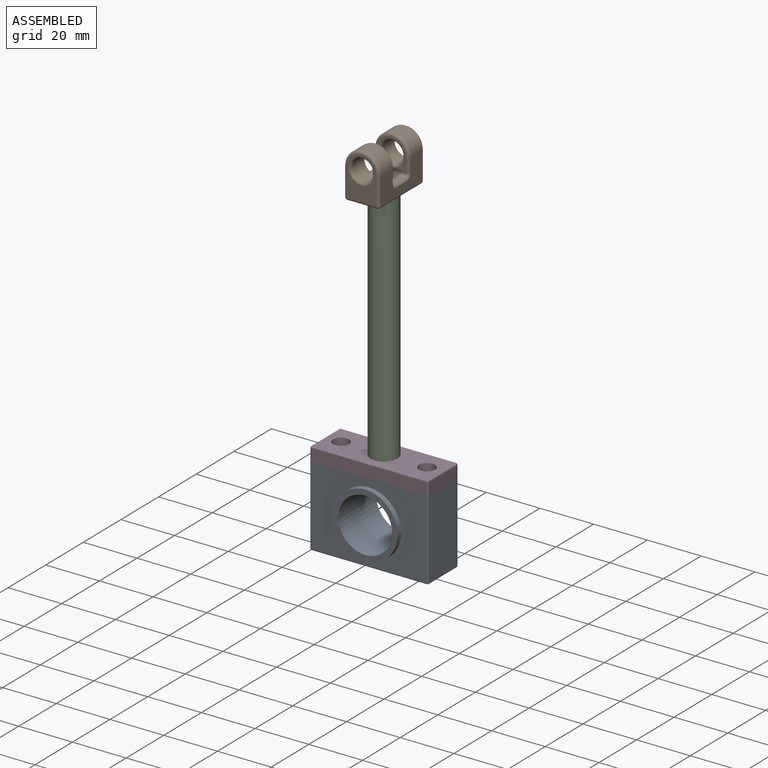
[diagram: assembled view]
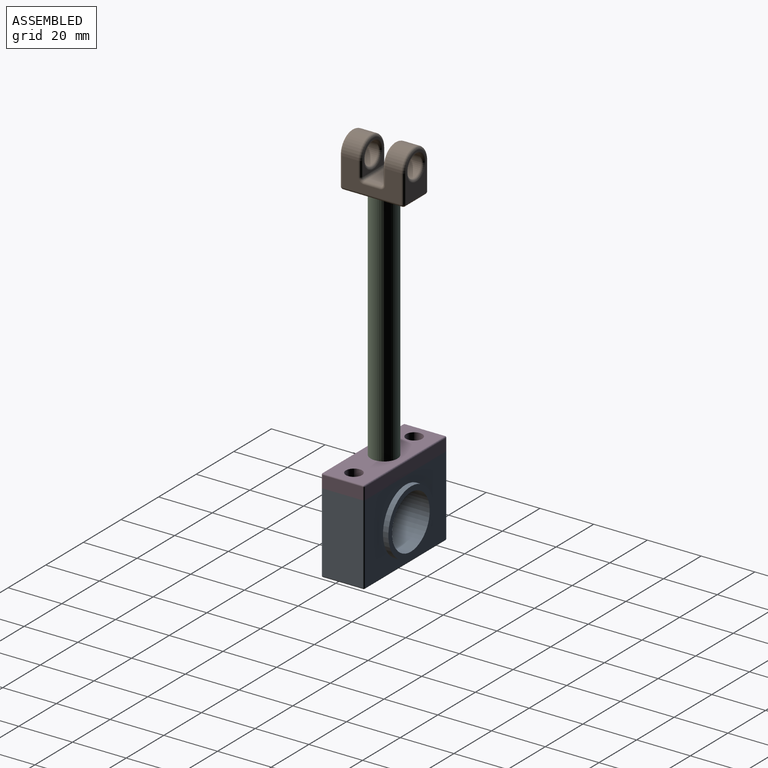
[diagram: assembled view, second angle]
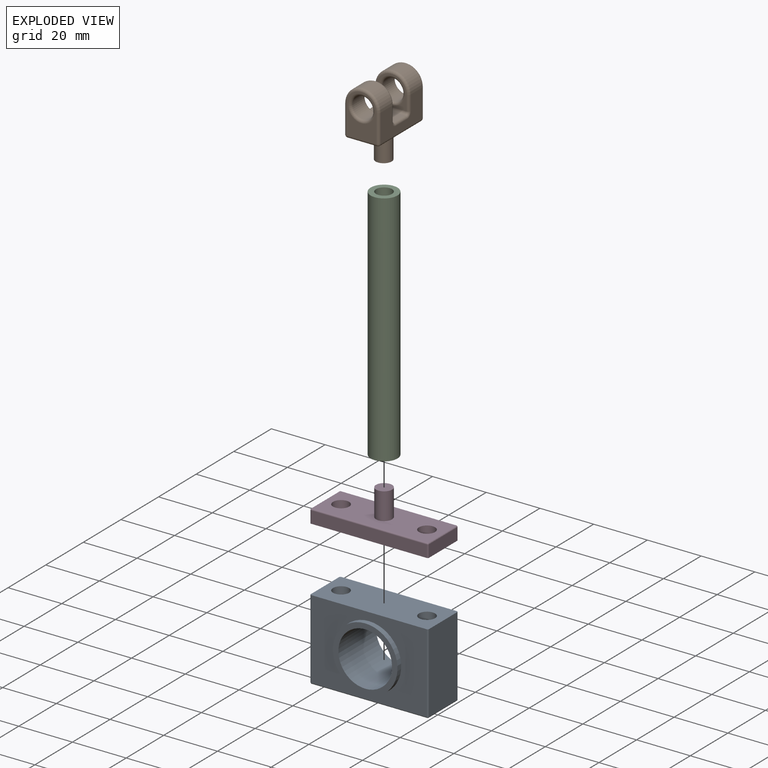
[diagram: exploded view]
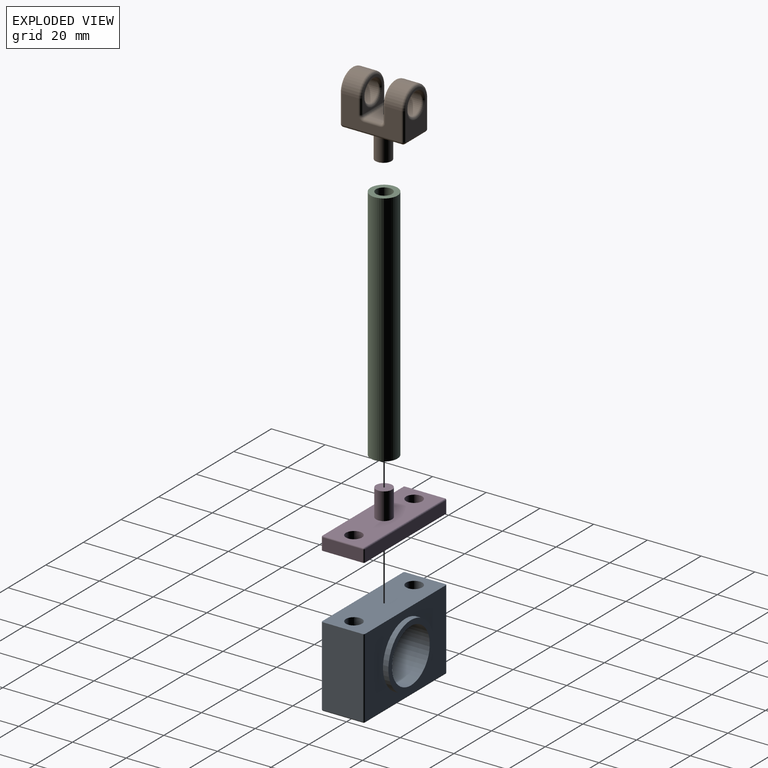
[diagram: exploded view, second angle]
ASSEMBLY  parts=4 mates=3
PART A: 25 faces, bbox 44x20x30 mm
  f0: plane 44x16mm, normal (0,0,1), area 647.2mm2, adj f2,f4,f5,f6,f7,f8,f13,f15
  f1: plane 43x15mm, normal (0,0,-1), area 588.5mm2, adj f7,f8,f14,f19,f20,f24
  f2: plane 29.5x15mm, normal (-1,0,0), area 442.5mm2, adj f0,f18,f21,f24
  f3: cylinder r=10mm len=20mm, axis (0,1,0), area 1256.6mm2, adj f10,f12
  f4: plane 29.5x15mm, normal (1,0,0), area 442.5mm2, adj f0,f13,f14,f15
  f5: plane 43x29.5mm, normal (0,-1,0), area 816.1mm2, adj f0,f9,f13,f18,f19
  f6: plane 43x29.5mm, normal (0,1,0), area 816.1mm2, adj f0,f11,f15,f20,f21
  f7: cylinder r=3mm len=30mm, axis (0,0,1), area 565.5mm2, adj f0,f1
  f8: cylinder r=3mm len=30mm, axis (0,0,1), area 565.5mm2, adj f0,f1
  f9: cylinder r=12mm len=24mm, axis (0,1,0), area 150.8mm2, adj f5,f10
  f10: plane 24x24mm, normal (0,-1,0), area 138.2mm2, adj f3,f9
  f11: cylinder r=12mm len=24mm, axis (0,-1,0), area 150.8mm2, adj f6,f12
  f12: plane 24x24mm, normal (0,1,0), area 138.2mm2, adj f3,f11
  f13: cylinder r=0.5mm len=29.5mm, axis (0,0,-1), area 23.2mm2, adj f0,f4,f5,f16
  f14: cylinder r=0.5mm len=15mm, axis (0,-1,0), area 11.8mm2, adj f1,f4,f16,f17
  f15: cylinder r=0.5mm len=29.5mm, axis (0,0,1), area 23.2mm2, adj f0,f4,f6,f17
  f16: sphere r=0.5mm, area 0.4mm2, adj f13,f14,f19
  f17: sphere r=0.5mm, area 0.4mm2, adj f14,f15,f20
  f18: cylinder r=0.5mm len=29.5mm, axis (0,0,1), area 23.2mm2, adj f0,f2,f5,f22
  f19: cylinder r=0.5mm len=43mm, axis (-1,0,0), area 33.8mm2, adj f1,f5,f16,f22
  f20: cylinder r=0.5mm len=43mm, axis (1,0,0), area 33.8mm2, adj f1,f6,f17,f23
  f21: cylinder r=0.5mm len=29.5mm, axis (0,0,-1), area 23.2mm2, adj f0,f2,f6,f23
  f22: sphere r=0.5mm, area 0.4mm2, adj f18,f19,f24
  f23: sphere r=0.5mm, area 0.4mm2, adj f20,f21,f24
  f24: cylinder r=0.5mm len=15mm, axis (0,1,0), area 11.8mm2, adj f1,f2,f22,f23
PART B: 46 faces, bbox 24x14.1x28.5 mm
  f0: cylinder r=6.5mm len=13mm, axis (-1,0,0), area 122.5mm2, adj f1,f2,f27,f36
  f1: plane 22x10.5mm, normal (0,-1,0), area 157.7mm2, adj f0,f4,f17,f19,f22,f24,f26,f37
  f2: plane 22x10.5mm, normal (0,1,0), area 157.7mm2, adj f0,f4,f15,f18,f20,f23,f25,f30
  f3: cylinder r=4mm len=8mm, axis (-1,0,0), area 150.8mm2, adj f28,f44
  f4: cylinder r=6.5mm len=13mm, axis (-1,0,0), area 122.5mm2, adj f1,f2,f14,f33
  f5: plane 22x11mm, normal (0,0,-1), area 213.7mm2, adj f12,f31,f38,f39,f43
  f6: cylinder r=4mm len=8mm, axis (-1,0,0), area 150.8mm2, adj f29,f45
  f7: plane 16x11mm, normal (1,0,0), area 84.5mm2, adj f30,f33,f37,f38,f45
  f8: plane 16x11mm, normal (-1,0,0), area 84.5mm2, adj f32,f36,f39,f40,f44
  f9: plane 11x11mm, normal (1,0,0), area 29.5mm2, adj f21,f25,f26,f27,f28
  f10: plane 11x11mm, normal (-1,0,0), area 29.5mm2, adj f14,f15,f16,f17,f29
  f11: plane 11x6mm, normal (0,0,1), area 66mm2, adj f16,f20,f21,f22
  f12: cylinder r=3mm len=10mm, axis (0,0,1), area 188.5mm2, adj f5,f13
  f13: plane 6x6mm, normal (0,0,-1), area 28.3mm2, adj f12
  f14: torus R=5.5mm, axis (1,0,0), area 30.3mm2, adj f4,f10,f15,f17
  f15: cylinder r=1mm len=5.5mm, axis (0,0,-1), area 8.6mm2, adj f2,f10,f14,f18
  f16: cylinder r=1mm len=11mm, axis (0,-1,0), area 17.3mm2, adj f10,f11,f18,f19
  f17: cylinder r=1mm len=5.5mm, axis (0,0,1), area 8.6mm2, adj f1,f10,f14,f19
  f18: torus R=2mm, axis (0,-1,0), area 3.4mm2, adj f2,f15,f16,f20
  f19: torus R=2mm, axis (0,1,0), area 3.4mm2, adj f1,f16,f17,f22
  f20: cylinder r=1mm len=6mm, axis (-1,0,0), area 9.4mm2, adj f2,f11,f18,f23
  f21: cylinder r=1mm len=11mm, axis (0,-1,0), area 17.3mm2, adj f9,f11,f23,f24
  f22: cylinder r=1mm len=6mm, axis (1,0,0), area 9.4mm2, adj f1,f11,f19,f24
  f23: torus R=2mm, axis (0,-1,0), area 3.4mm2, adj f2,f20,f21,f25
  f24: torus R=2mm, axis (0,1,0), area 3.4mm2, adj f1,f21,f22,f26
  f25: cylinder r=1mm len=5.5mm, axis (0,0,1), area 8.6mm2, adj f2,f9,f23,f27
  f26: cylinder r=1mm len=5.5mm, axis (0,0,-1), area 8.6mm2, adj f1,f9,f24,f27
  f27: torus R=5.5mm, axis (-1,0,0), area 30.3mm2, adj f0,f9,f25,f26
  f28: torus R=5mm, axis (-1,0,0), area 43.1mm2, adj f3,f9
  f29: torus R=5mm, axis (1,0,0), area 43.1mm2, adj f6,f10
  f30: cylinder r=1mm len=10.5mm, axis (0,0,-1), area 16.5mm2, adj f2,f7,f33,f34
  f31: cylinder r=1mm len=22mm, axis (-1,0,0), area 34.6mm2, adj f2,f5,f34,f35
  f32: cylinder r=1mm len=10.5mm, axis (0,0,1), area 16.5mm2, adj f2,f8,f35,f36
  f33: torus R=5.5mm, axis (1,0,0), area 30.3mm2, adj f4,f7,f30,f37
  f34: sphere r=1mm, area 1.6mm2, adj f30,f31,f38
  f35: sphere r=1mm, area 1.6mm2, adj f31,f32,f39
  f36: torus R=5.5mm, axis (1,0,0), area 30.3mm2, adj f0,f8,f32,f40
  f37: cylinder r=1mm len=10.5mm, axis (0,0,1), area 16.5mm2, adj f1,f7,f33,f41
  f38: cylinder r=1mm len=11mm, axis (0,-1,0), area 17.3mm2, adj f5,f7,f34,f41
  f39: cylinder r=1mm len=11mm, axis (0,1,0), area 17.3mm2, adj f5,f8,f35,f42
  f40: cylinder r=1mm len=10.5mm, axis (0,0,-1), area 16.5mm2, adj f1,f8,f36,f42
  f41: sphere r=1mm, area 1.6mm2, adj f37,f38,f43
  f42: sphere r=1mm, area 1.6mm2, adj f39,f40,f43
  f43: cylinder r=1mm len=22mm, axis (-1,0,0), area 34.6mm2, adj f1,f5,f41,f42
  f44: torus R=5mm, axis (1,0,0), area 43.1mm2, adj f3,f8
  f45: torus R=5mm, axis (1,0,0), area 43.1mm2, adj f6,f7
PART C: 7 faces, bbox 10x10x88.5 mm
  f0: cylinder r=5mm len=88.5mm, axis (0,0,-1), area 2780.3mm2, adj f1,f2
  f1: plane 10x10mm, normal (0,0,1), area 50.3mm2, adj f0,f3
  f2: plane 10x10mm, normal (0,0,-1), area 50.3mm2, adj f0,f5
  f3: cylinder r=3mm len=10mm, axis (0,0,1), area 188.5mm2, adj f1,f4
  f4: plane 6x6mm, normal (0,0,1), area 28.3mm2, adj f3
  f5: cylinder r=3mm len=10mm, axis (0,0,-1), area 188.5mm2, adj f2,f6
  f6: plane 6x6mm, normal (0,0,-1), area 28.3mm2, adj f5
PART D: 22 faces, bbox 44x16x15 mm
  f0: plane 43x15mm, normal (0,0,1), area 560.2mm2, adj f6,f8,f9,f13,f14,f18,f19
  f1: plane 44x16mm, normal (0,0,-1), area 647.2mm2, adj f2,f3,f4,f5,f8,f9,f10,f12
  f2: plane 43x4.5mm, normal (0,1,0), area 193.5mm2, adj f1,f12,f18,f21
  f3: plane 15x4.5mm, normal (-1,0,0), area 67.5mm2, adj f1,f15,f19,f21
  f4: plane 43x4.5mm, normal (0,-1,0), area 193.5mm2, adj f1,f10,f14,f15
  f5: plane 15x4.5mm, normal (1,0,0), area 67.5mm2, adj f1,f10,f12,f13
  f6: cylinder r=3mm len=10mm, axis (0,0,-1), area 188.5mm2, adj f0,f7
  f7: plane 6x6mm, normal (0,0,1), area 28.3mm2, adj f6
  f8: cylinder r=3mm len=6mm, axis (0,0,1), area 94.2mm2, adj f0,f1
  f9: cylinder r=3mm len=6mm, axis (0,0,1), area 94.2mm2, adj f0,f1
  f10: cylinder r=0.5mm len=4.5mm, axis (0,0,1), area 3.5mm2, adj f1,f4,f5,f11
  f11: sphere r=0.5mm, area 0.4mm2, adj f10,f13,f14
  f12: cylinder r=0.5mm len=4.5mm, axis (0,0,-1), area 3.5mm2, adj f1,f2,f5,f16
  f13: cylinder r=0.5mm len=15mm, axis (0,-1,0), area 11.8mm2, adj f0,f5,f11,f16
  f14: cylinder r=0.5mm len=43mm, axis (-1,0,0), area 33.8mm2, adj f0,f4,f11,f17
  f15: cylinder r=0.5mm len=4.5mm, axis (0,0,-1), area 3.5mm2, adj f1,f3,f4,f17
  f16: sphere r=0.5mm, area 0.4mm2, adj f12,f13,f18
  f17: sphere r=0.5mm, area 0.4mm2, adj f14,f15,f19
  f18: cylinder r=0.5mm len=43mm, axis (1,0,0), area 33.8mm2, adj f0,f2,f16,f20
  f19: cylinder r=0.5mm len=15mm, axis (0,1,0), area 11.8mm2, adj f0,f3,f17,f20
  f20: sphere r=0.5mm, area 0.4mm2, adj f18,f19,f21
  f21: cylinder r=0.5mm len=4.5mm, axis (0,0,1), area 3.5mm2, adj f1,f2,f3,f20
PLACE A t=(0,8,-15)mm
PLACE B rot(axis=(0,0,-1),90deg) t=(0,11.97,105)mm
PLACE C t=(0,0,5)mm
PLACE D at identity
MATE fastened A.f7 <-> D.f8  axis (0,0,1) through (16,0,0)mm
MATE fastened C.f0 <-> D.f6  axis (0,0,-1) through (0,0,5)mm
MATE fastened C.f3 <-> B.f5  axis (0,0,1) through (0,0,93.5)mm
